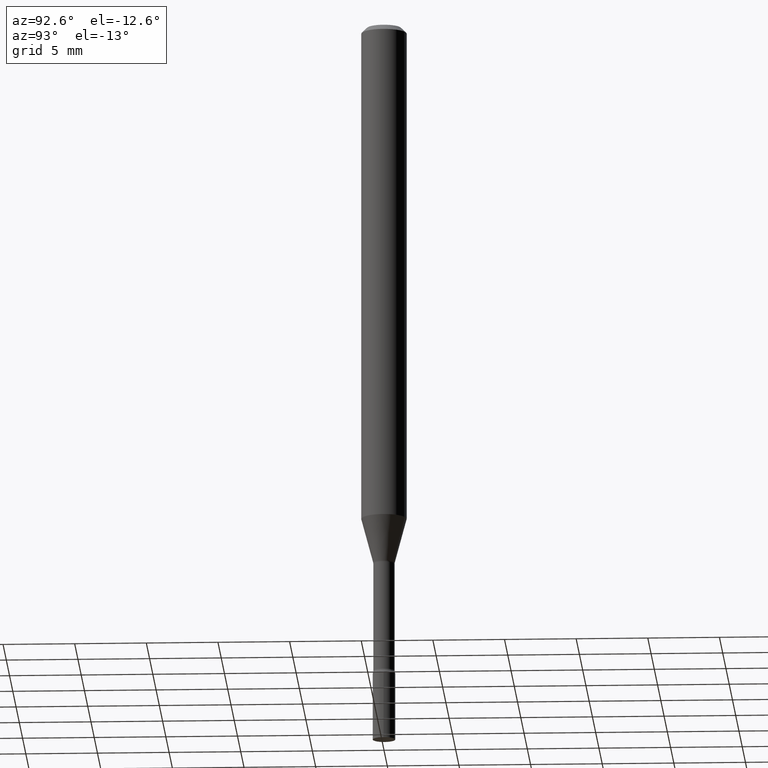
[diagram: clean part render]
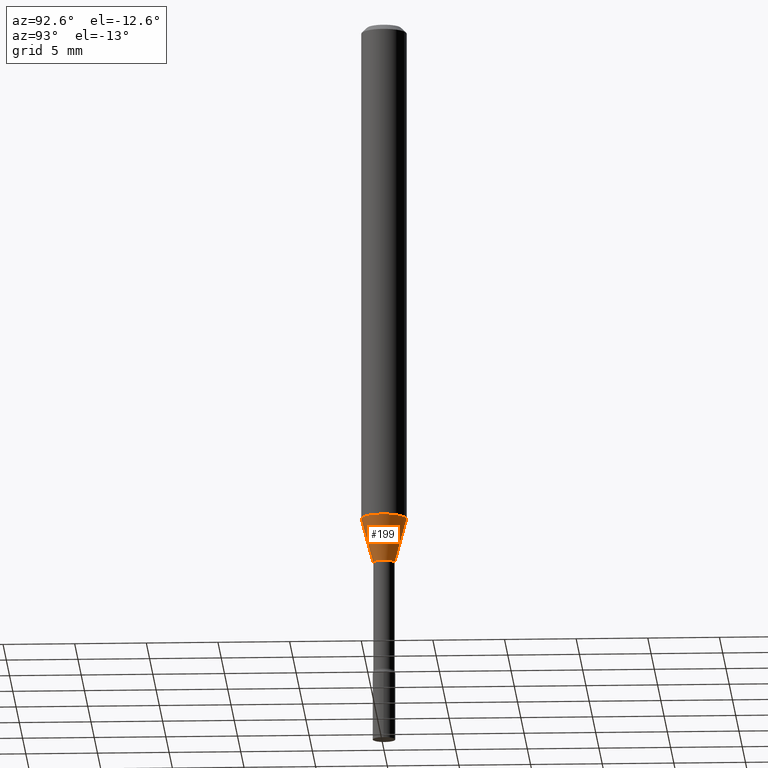
[diagram: same view with one face highlighted and labeled with its STEP entity id]
A machine part, auxiliary view. The second image highlights one B-rep face of the part: STEP entity #199.
In plain terms, the highlighted conical surface has half-angle 15 deg.
Its self-contained STEP definition (entity closure, byte-faithful):
#2 = CARTESIAN_POINT ( 'NONE',  ( 3.673319952389542966E-29, -5.244528518811216115E-15, -1.502092501787273271 ) ) ;
#4 = DIRECTION ( 'NONE',  ( -6.982962677686265922E-15, -1.000000000000000000, 4.370956789862821150E-15 ) ) ;
#5 = EDGE_CURVE ( 'NONE', #150, #216, #368, .T. ) ;
#13 = DIRECTION ( 'NONE',  ( -2.445468536737133447E-29, 3.491481724708021844E-15, 1.000000000000000000 ) ) ;
#22 = CARTESIAN_POINT ( 'NONE',  ( -2.071224423039644956E-16, -0.02966111260566922994, -1.502092501787273271 ) ) ;
#27 = CIRCLE ( 'NONE', #87, 0.06250000000000000000 ) ;
#49 = ORIENTED_EDGE ( 'NONE', *, *, #73, .T. ) ;
#56 = CIRCLE ( 'NONE', #411, 0.02966111260566398414 ) ;
#73 = EDGE_CURVE ( 'NONE', #150, #413, #56, .T. ) ;
#87 = AXIS2_PLACEMENT_3D ( 'NONE', #184, #89, #4 ) ;
#89 = DIRECTION ( 'NONE',  ( -2.445468536737133447E-29, 3.491481724708021844E-15, 1.000000000000000000 ) ) ;
#92 = CARTESIAN_POINT ( 'NONE',  ( -4.364351673553580935E-16, -0.06250000000000484335, -1.379536105567578108 ) ) ;
#114 = FACE_OUTER_BOUND ( 'NONE', #221, .T. ) ;
#116 = DIRECTION ( 'NONE',  ( -6.982962677686265922E-15, -1.000000000000000000, 0.000000000000000000 ) ) ;
#135 = DIRECTION ( 'NONE',  ( -6.982962677686265922E-15, -1.000000000000000000, 0.000000000000000000 ) ) ;
#139 = CARTESIAN_POINT ( 'NONE',  ( 4.440892098500961428E-16, 0.06249999999999514971, -1.379536105567578552 ) ) ;
#140 = DIRECTION ( 'NONE',  ( -1.807323732225328562E-15, -0.2588190451025179639, 0.9659258262890690894 ) ) ;
#150 = VERTEX_POINT ( 'NONE', #294 ) ;
#184 = CARTESIAN_POINT ( 'NONE',  ( 3.373612141458389252E-29, -4.816625101164076707E-15, -1.379536105567578330 ) ) ;
#199 = ADVANCED_FACE ( 'NONE', ( #114 ), #440, .T. ) ;
#207 = ORIENTED_EDGE ( 'NONE', *, *, #5, .F. ) ;
#216 = VERTEX_POINT ( 'NONE', #92 ) ;
#221 = EDGE_LOOP ( 'NONE', ( #49, #364, #465, #207 ) ) ;
#226 = CARTESIAN_POINT ( 'NONE',  ( 3.673319952389542966E-29, -5.244528518811216115E-15, -1.502092501787273271 ) ) ;
#227 = LINE ( 'NONE', #229, #430 ) ;
#229 = CARTESIAN_POINT ( 'NONE',  ( 2.107548809652055165E-16, 0.02966111260565873833, -1.502092501787273271 ) ) ;
#266 = CARTESIAN_POINT ( 'NONE',  ( 3.274220454076509529E-16, 0.02966111260565873833, -1.502092501787273271 ) ) ;
#272 = DIRECTION ( 'NONE',  ( 1.839019923739598738E-15, 0.2588190451025247363, 0.9659258262890673130 ) ) ;
#286 = EDGE_CURVE ( 'NONE', #216, #468, #27, .T. ) ;
#294 = CARTESIAN_POINT ( 'NONE',  ( -2.071224423039644956E-16, -0.02966111260566922994, -1.502092501787273271 ) ) ;
#318 = DIRECTION ( 'NONE',  ( -2.445468536737133447E-29, 3.491481724708021844E-15, 1.000000000000000000 ) ) ;
#348 = AXIS2_PLACEMENT_3D ( 'NONE', #2, #318, #116 ) ;
#364 = ORIENTED_EDGE ( 'NONE', *, *, #416, .T. ) ;
#368 = LINE ( 'NONE', #22, #429 ) ;
#411 = AXIS2_PLACEMENT_3D ( 'NONE', #226, #13, #135 ) ;
#413 = VERTEX_POINT ( 'NONE', #266 ) ;
#416 = EDGE_CURVE ( 'NONE', #413, #468, #227, .T. ) ;
#429 = VECTOR ( 'NONE', #140, 39.37007874015748854 ) ;
#430 = VECTOR ( 'NONE', #272, 39.37007874015748854 ) ;
#440 = CONICAL_SURFACE ( 'NONE', #348, 0.02966111260566398414, 0.2617993877991500740 ) ;
#465 = ORIENTED_EDGE ( 'NONE', *, *, #286, .F. ) ;
#468 = VERTEX_POINT ( 'NONE', #139 ) ;